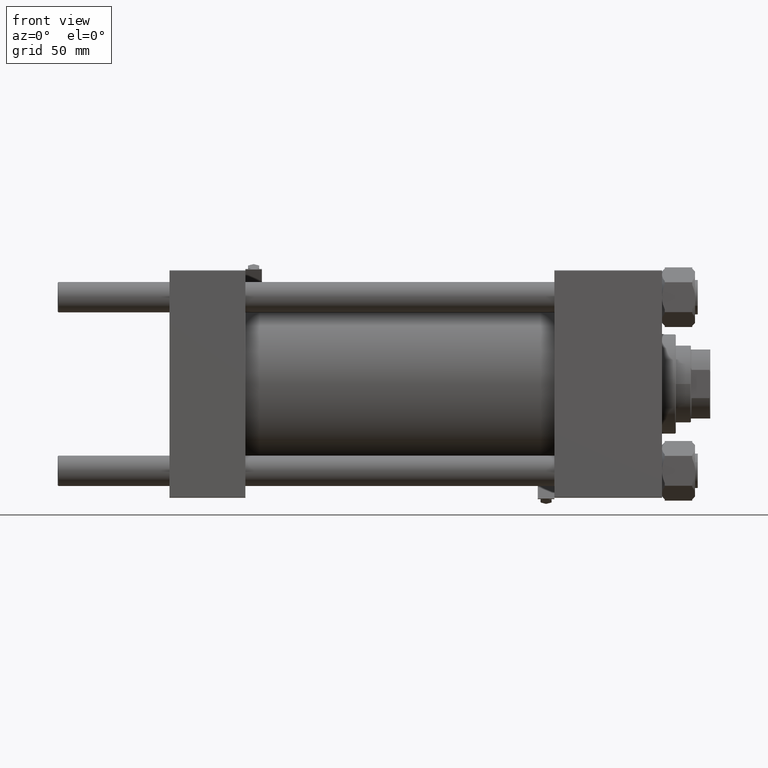
[diagram: clean part render]
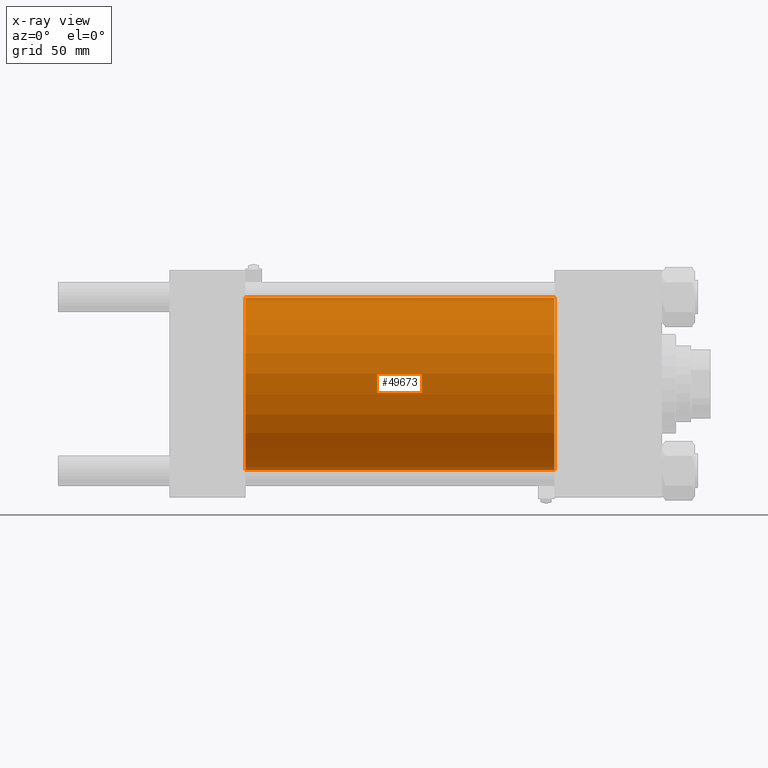
[diagram: x-ray — body ghosted, one internal face saturated and labeled with its STEP entity id]
A machine part, front view, then the same camera in x-ray: the body is ghosted and one INTERNAL B-rep face — a face not visible from any outside direction — is saturated and labeled: STEP entity #49673.
In plain terms, the highlighted cylindrical surface (partial cylindrical patch) has radius 62.5 mm, axis along (-1, -0, -0).
Its self-contained STEP definition (entity closure, byte-faithful):
#683 = ORIENTED_EDGE ( 'NONE', *, *, #4326, .F. ) ;
#1082 = CARTESIAN_POINT ( 'NONE',  ( 279.0000000000000000, 7.654042494670957804E-15, -62.50000000000000000 ) ) ;
#1775 = CIRCLE ( 'NONE', #47426, 62.50000000000000000 ) ;
#4326 = EDGE_CURVE ( 'NONE', #23010, #28459, #15558, .T. ) ;
#5277 = VERTEX_POINT ( 'NONE', #14988 ) ;
#6400 = AXIS2_PLACEMENT_3D ( 'NONE', #18053, #33922, #17552 ) ;
#6639 = ORIENTED_EDGE ( 'NONE', *, *, #19232, .F. ) ;
#7496 = DIRECTION ( 'NONE',  ( -1.000000000000000000, -0.000000000000000000, -0.000000000000000000 ) ) ;
#7750 = VECTOR ( 'NONE', #17431, 1000.000000000000000 ) ;
#9978 = EDGE_LOOP ( 'NONE', ( #25357, #43409, #6639, #683 ) ) ;
#14942 = AXIS2_PLACEMENT_3D ( 'NONE', #39969, #7496, #43369 ) ;
#14988 = CARTESIAN_POINT ( 'NONE',  ( 279.0000000000000000, 7.654042494670957804E-15, -62.50000000000000000 ) ) ;
#15558 = LINE ( 'NONE', #32167, #25075 ) ;
#17431 = DIRECTION ( 'NONE',  ( -1.000000000000000000, -0.000000000000000000, -0.000000000000000000 ) ) ;
#17552 = DIRECTION ( 'NONE',  ( 0.000000000000000000, 0.000000000000000000, -1.000000000000000000 ) ) ;
#17950 = VERTEX_POINT ( 'NONE', #36720 ) ;
#18053 = CARTESIAN_POINT ( 'NONE',  ( 279.0000000000000000, 0.000000000000000000, 0.000000000000000000 ) ) ;
#19232 = EDGE_CURVE ( 'NONE', #28459, #17950, #1775, .T. ) ;
#21330 = LINE ( 'NONE', #1082, #7750 ) ;
#22974 = CARTESIAN_POINT ( 'NONE',  ( 279.0000000000000000, 0.000000000000000000, 62.50000000000000000 ) ) ;
#23010 = VERTEX_POINT ( 'NONE', #22974 ) ;
#25075 = VECTOR ( 'NONE', #38954, 1000.000000000000000 ) ;
#25357 = ORIENTED_EDGE ( 'NONE', *, *, #34315, .T. ) ;
#27381 = EDGE_CURVE ( 'NONE', #5277, #17950, #21330, .T. ) ;
#28001 = FACE_OUTER_BOUND ( 'NONE', #9978, .T. ) ;
#28459 = VERTEX_POINT ( 'NONE', #34279 ) ;
#32136 = CIRCLE ( 'NONE', #6400, 62.50000000000000000 ) ;
#32167 = CARTESIAN_POINT ( 'NONE',  ( 279.0000000000000000, 0.000000000000000000, 62.50000000000000000 ) ) ;
#32192 = CARTESIAN_POINT ( 'NONE',  ( 55.00000000000000000, 0.000000000000000000, 0.000000000000000000 ) ) ;
#33922 = DIRECTION ( 'NONE',  ( 1.000000000000000000, 0.000000000000000000, 0.000000000000000000 ) ) ;
#34279 = CARTESIAN_POINT ( 'NONE',  ( 55.00000000000000000, 0.000000000000000000, 62.50000000000000000 ) ) ;
#34315 = EDGE_CURVE ( 'NONE', #23010, #5277, #32136, .T. ) ;
#36720 = CARTESIAN_POINT ( 'NONE',  ( 55.00000000000000000, 7.654042494670957804E-15, -62.50000000000000000 ) ) ;
#38954 = DIRECTION ( 'NONE',  ( -1.000000000000000000, -0.000000000000000000, -0.000000000000000000 ) ) ;
#39969 = CARTESIAN_POINT ( 'NONE',  ( 279.0000000000000000, 0.000000000000000000, 0.000000000000000000 ) ) ;
#40499 = DIRECTION ( 'NONE',  ( 0.000000000000000000, 0.000000000000000000, -1.000000000000000000 ) ) ;
#43369 = DIRECTION ( 'NONE',  ( 0.000000000000000000, 0.000000000000000000, 1.000000000000000000 ) ) ;
#43409 = ORIENTED_EDGE ( 'NONE', *, *, #27381, .T. ) ;
#43866 = CYLINDRICAL_SURFACE ( 'NONE', #14942, 62.50000000000000000 ) ;
#47426 = AXIS2_PLACEMENT_3D ( 'NONE', #32192, #48051, #40499 ) ;
#48051 = DIRECTION ( 'NONE',  ( 1.000000000000000000, 0.000000000000000000, 0.000000000000000000 ) ) ;
#49673 = ADVANCED_FACE ( 'NONE', ( #28001 ), #43866, .F. ) ;